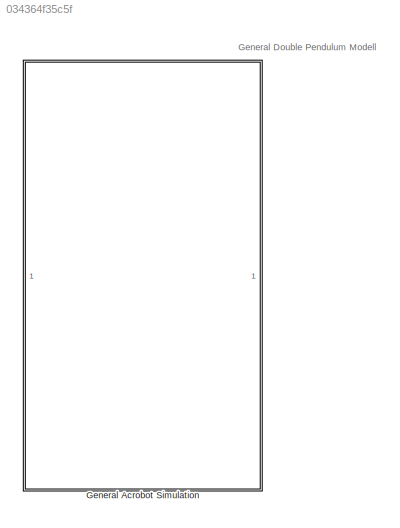
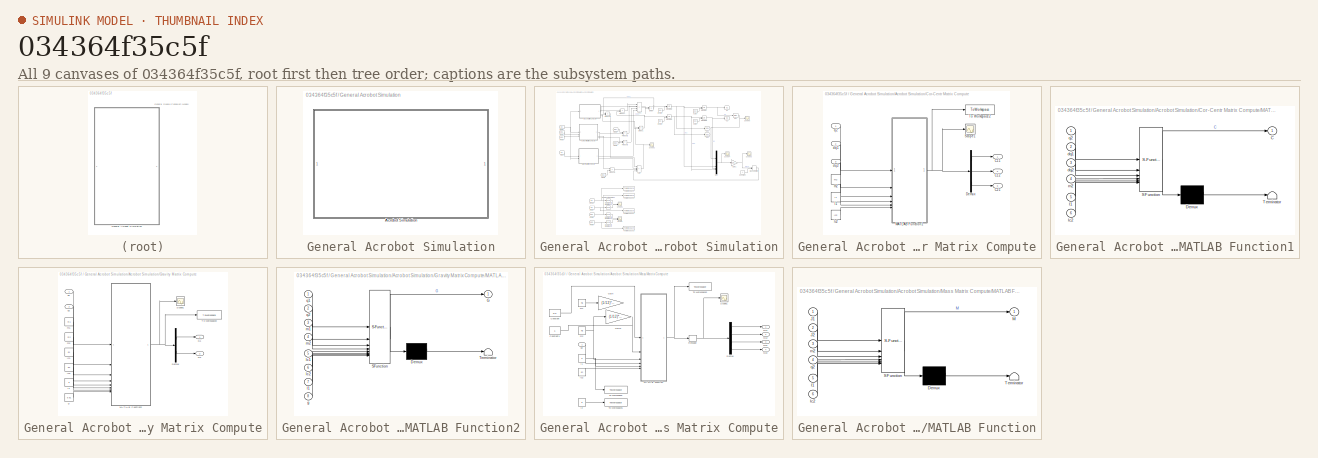
[diagram: thumbnail index - all 9 canvases of the model, root first then tree order]
MODEL slx_034364f35c5f
KIND model
CONFIG AbsTol = auto
CONFIG EnableMultiTasking = off
CONFIG FixedStep = auto
CONFIG MaxStep = 0.01*1.6
CONFIG MinStep = auto
CONFIG RelTol = 1e-3
CONFIG SampleTimeConstraint = Unconstrained
CONFIG SolverName = ode23t
CONFIG StartTime = 0.0
CONFIG StopTime = 50
BLOCK [SubSystem] General Acrobot Simulation
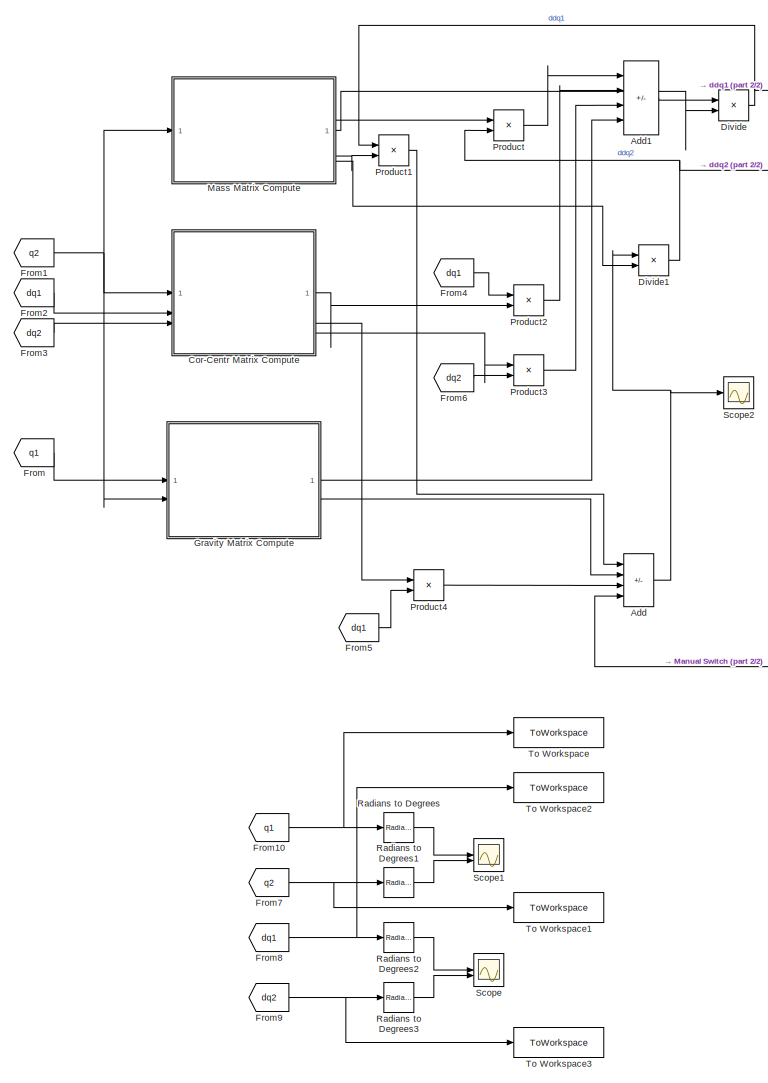
[diagram: General Acrobot Simulation/Acrobot Simulation - part 1/2, left side, full height]
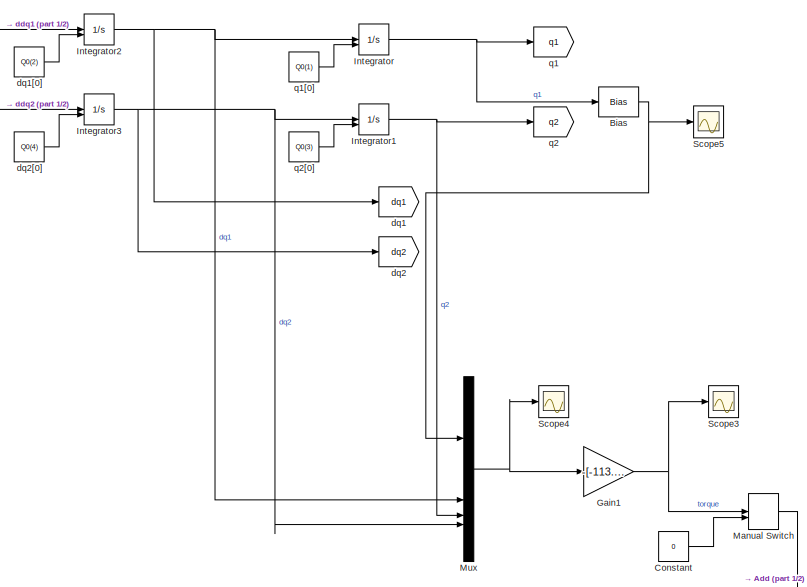
[diagram: General Acrobot Simulation/Acrobot Simulation - part 2/2, middle right region]
BLOCK [SubSystem] General Acrobot Simulation/Acrobot Simulation
BLOCK [Sum] General Acrobot Simulation/Acrobot Simulation/Add
  IconShape = rectangular
  Inputs = ---+
BLOCK [Sum] General Acrobot Simulation/Acrobot Simulation/Add1
  IconShape = rectangular
  Inputs = ----
BLOCK [Bias] General Acrobot Simulation/Acrobot Simulation/Bias
  Bias = -pi
  SaturateOnIntegerOverflow = off
BLOCK [Constant] General Acrobot Simulation/Acrobot Simulation/Constant
  Value = 0
BLOCK [SubSystem] General Acrobot Simulation/Acrobot Simulation/Cor-Centr Matrix Compute
BLOCK [Outport] General Acrobot Simulation/Acrobot Simulation/Cor-Centr Matrix Compute/C11
BLOCK [Outport] General Acrobot Simulation/Acrobot Simulation/Cor-Centr Matrix Compute/C12
  Port = 2
BLOCK [Outport] General Acrobot Simulation/Acrobot Simulation/Cor-Centr Matrix Compute/C21
  Port = 3
BLOCK [Demux] General Acrobot Simulation/Acrobot Simulation/Cor-Centr Matrix Compute/Demux
  Outputs = 3
BLOCK [SubSystem] General Acrobot Simulation/Acrobot Simulation/Cor-Centr Matrix Compute/MATLAB Function1
  ErrorFcn = Stateflow.Translate.translate
  PermitHierarchicalResolution = ExplicitOnly
  SFBlockType = MATLAB Function
  TreatAsAtomicUnit = on
BLOCK [Demux] General Acrobot Simulation/Acrobot Simulation/Cor-Centr Matrix Compute/MATLAB Function1/ Demux 
  Outputs = 1
BLOCK [S-Function] General Acrobot Simulation/Acrobot Simulation/Cor-Centr Matrix Compute/MATLAB Function1/ SFunction 
  EnableBusSupport = on
  FunctionName = sf_sfun
  PortCounts = [6 2]
  SFcnIsStateOwnerBlock = off
  SFunctionDeploymentMode = off
  Tag = Stateflow S-Function 1
BLOCK [Terminator] General Acrobot Simulation/Acrobot Simulation/Cor-Centr Matrix Compute/MATLAB Function1/ Terminator 
BLOCK [Outport] General Acrobot Simulation/Acrobot Simulation/Cor-Centr Matrix Compute/MATLAB Function1/C
BLOCK [Inport] General Acrobot Simulation/Acrobot Simulation/Cor-Centr Matrix Compute/MATLAB Function1/dq1
  Port = 2
BLOCK [Inport] General Acrobot Simulation/Acrobot Simulation/Cor-Centr Matrix Compute/MATLAB Function1/dq2
  Port = 3
BLOCK [Inport] General Acrobot Simulation/Acrobot Simulation/Cor-Centr Matrix Compute/MATLAB Function1/l1
  Port = 5
BLOCK [Inport] General Acrobot Simulation/Acrobot Simulation/Cor-Centr Matrix Compute/MATLAB Function1/lc2
  Port = 6
BLOCK [Inport] General Acrobot Simulation/Acrobot Simulation/Cor-Centr Matrix Compute/MATLAB Function1/m2
  Port = 4
BLOCK [Inport] General Acrobot Simulation/Acrobot Simulation/Cor-Centr Matrix Compute/MATLAB Function1/q2
BLOCK [Scope] General Acrobot Simulation/Acrobot Simulation/Cor-Centr Matrix Compute/Scope1
  Floating = off
  NumInputPorts = 1
  ScopeSpecificationString = Simulink.scopes.TimeScopeBlockCfg('CurrentConfiguration', extmgr.ConfigurationSet(extmgr.Configuration('Core','General UI',true),extmgr.Configuration('Core','Source UI',true),extmgr.Configuration('Sources','WiredSimulink',true,'DataLoggingVariableName','ScopeData2'),extmgr.Configuration('Visuals','Time Domain',true,'SerializedDisplays',{struct('MinYLimReal','31.7875','MaxYLimReal','43.9125','YLabe...<+1466ch>
BLOCK [ToWorkspace] General Acrobot Simulation/Acrobot Simulation/Cor-Centr Matrix Compute/To Workspace2
  FixptAsFi = on
  MaxDataPoints = inf
  SampleTime = -1
  SaveFormat = Timeseries
  VariableName = C
BLOCK [Inport] General Acrobot Simulation/Acrobot Simulation/Cor-Centr Matrix Compute/dq1
  Port = 2
BLOCK [Inport] General Acrobot Simulation/Acrobot Simulation/Cor-Centr Matrix Compute/dq2
  Port = 3
BLOCK [Constant] General Acrobot Simulation/Acrobot Simulation/Cor-Centr Matrix Compute/l1
  Value = l1
BLOCK [Constant] General Acrobot Simulation/Acrobot Simulation/Cor-Centr Matrix Compute/lc2
  Value = lc2
BLOCK [Constant] General Acrobot Simulation/Acrobot Simulation/Cor-Centr Matrix Compute/m2
  Value = m2
BLOCK [Inport] General Acrobot Simulation/Acrobot Simulation/Cor-Centr Matrix Compute/q2
BLOCK [Product] General Acrobot Simulation/Acrobot Simulation/Divide
  Inputs = */
BLOCK [Product] General Acrobot Simulation/Acrobot Simulation/Divide1
  Inputs = */
BLOCK [From] General Acrobot Simulation/Acrobot Simulation/From
  GotoTag = q1
BLOCK [From] General Acrobot Simulation/Acrobot Simulation/From1
  GotoTag = q2
BLOCK [From] General Acrobot Simulation/Acrobot Simulation/From10
  GotoTag = q1
BLOCK [From] General Acrobot Simulation/Acrobot Simulation/From2
  GotoTag = dq1
BLOCK [From] General Acrobot Simulation/Acrobot Simulation/From3
  GotoTag = dq2
BLOCK [From] General Acrobot Simulation/Acrobot Simulation/From4
  GotoTag = dq1
BLOCK [From] General Acrobot Simulation/Acrobot Simulation/From5
  GotoTag = dq1
BLOCK [From] General Acrobot Simulation/Acrobot Simulation/From6
  GotoTag = dq2
BLOCK [From] General Acrobot Simulation/Acrobot Simulation/From7
  GotoTag = q2
BLOCK [From] General Acrobot Simulation/Acrobot Simulation/From8
  GotoTag = dq1
BLOCK [From] General Acrobot Simulation/Acrobot Simulation/From9
  GotoTag = dq2
BLOCK [Gain] General Acrobot Simulation/Acrobot Simulation/Gain1
  Gain = -[-113.89 -17.3951 -9.507 -1.9405]
  Multiplication = Matrix(K*u)
BLOCK [SubSystem] General Acrobot Simulation/Acrobot Simulation/Gravity Matrix Compute
BLOCK [Demux] General Acrobot Simulation/Acrobot Simulation/Gravity Matrix Compute/Demux
  Outputs = 2
BLOCK [Outport] General Acrobot Simulation/Acrobot Simulation/Gravity Matrix Compute/G1
BLOCK [Outport] General Acrobot Simulation/Acrobot Simulation/Gravity Matrix Compute/G2
  Port = 2
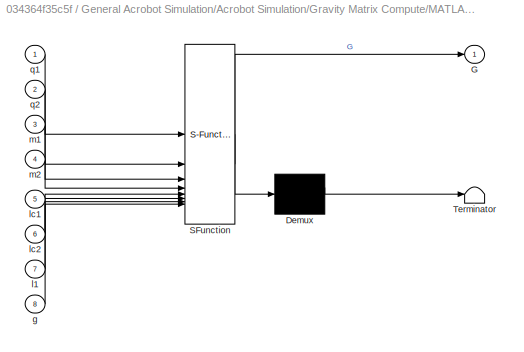
BLOCK [SubSystem] General Acrobot Simulation/Acrobot Simulation/Gravity Matrix Compute/MATLAB Function2
  ErrorFcn = Stateflow.Translate.translate
  PermitHierarchicalResolution = ExplicitOnly
  SFBlockType = MATLAB Function
  TreatAsAtomicUnit = on
BLOCK [Demux] General Acrobot Simulation/Acrobot Simulation/Gravity Matrix Compute/MATLAB Function2/ Demux 
  Outputs = 1
BLOCK [S-Function] General Acrobot Simulation/Acrobot Simulation/Gravity Matrix Compute/MATLAB Function2/ SFunction 
  EnableBusSupport = on
  FunctionName = sf_sfun
  PortCounts = [8 2]
  SFcnIsStateOwnerBlock = off
  SFunctionDeploymentMode = off
  Tag = Stateflow S-Function 3
BLOCK [Terminator] General Acrobot Simulation/Acrobot Simulation/Gravity Matrix Compute/MATLAB Function2/ Terminator 
BLOCK [Outport] General Acrobot Simulation/Acrobot Simulation/Gravity Matrix Compute/MATLAB Function2/G
BLOCK [Inport] General Acrobot Simulation/Acrobot Simulation/Gravity Matrix Compute/MATLAB Function2/g
  Port = 8
BLOCK [Inport] General Acrobot Simulation/Acrobot Simulation/Gravity Matrix Compute/MATLAB Function2/l1
  Port = 7
BLOCK [Inport] General Acrobot Simulation/Acrobot Simulation/Gravity Matrix Compute/MATLAB Function2/lc1
  Port = 5
BLOCK [Inport] General Acrobot Simulation/Acrobot Simulation/Gravity Matrix Compute/MATLAB Function2/lc2
  Port = 6
BLOCK [Inport] General Acrobot Simulation/Acrobot Simulation/Gravity Matrix Compute/MATLAB Function2/m1
  Port = 3
BLOCK [Inport] General Acrobot Simulation/Acrobot Simulation/Gravity Matrix Compute/MATLAB Function2/m2
  Port = 4
BLOCK [Inport] General Acrobot Simulation/Acrobot Simulation/Gravity Matrix Compute/MATLAB Function2/q1
BLOCK [Inport] General Acrobot Simulation/Acrobot Simulation/Gravity Matrix Compute/MATLAB Function2/q2
  Port = 2
BLOCK [Scope] General Acrobot Simulation/Acrobot Simulation/Gravity Matrix Compute/Scope1
  Floating = off
  NumInputPorts = 1
  ScopeSpecificationString = Simulink.scopes.TimeScopeBlockCfg('CurrentConfiguration', extmgr.ConfigurationSet(extmgr.Configuration('Core','General UI',true),extmgr.Configuration('Core','Source UI',true),extmgr.Configuration('Sources','WiredSimulink',true,'DataLoggingVariableName','ScopeData3'),extmgr.Configuration('Visuals','Time Domain',true,'SerializedDisplays',{struct('MinYLimReal','31.7875','MaxYLimReal','43.9125','YLabe...<+1466ch>
BLOCK [ToWorkspace] General Acrobot Simulation/Acrobot Simulation/Gravity Matrix Compute/To Workspace2
  FixptAsFi = on
  MaxDataPoints = inf
  SampleTime = -1
  SaveFormat = Timeseries
  VariableName = G
BLOCK [Constant] General Acrobot Simulation/Acrobot Simulation/Gravity Matrix Compute/g
  Value = 9.81
BLOCK [Constant] General Acrobot Simulation/Acrobot Simulation/Gravity Matrix Compute/l1
  Value = l1
BLOCK [Constant] General Acrobot Simulation/Acrobot Simulation/Gravity Matrix Compute/lc1
  Value = lc1
BLOCK [Constant] General Acrobot Simulation/Acrobot Simulation/Gravity Matrix Compute/lc2
  Value = lc2
BLOCK [Constant] General Acrobot Simulation/Acrobot Simulation/Gravity Matrix Compute/m1
  Value = m1
BLOCK [Constant] General Acrobot Simulation/Acrobot Simulation/Gravity Matrix Compute/m2
  Value = m2
BLOCK [Inport] General Acrobot Simulation/Acrobot Simulation/Gravity Matrix Compute/q1
BLOCK [Inport] General Acrobot Simulation/Acrobot Simulation/Gravity Matrix Compute/q2
  Port = 2
BLOCK [Integrator] General Acrobot Simulation/Acrobot Simulation/Integrator
  InitialConditionSource = external
BLOCK [Integrator] General Acrobot Simulation/Acrobot Simulation/Integrator1
  InitialCondition = pi/6
  InitialConditionSource = external
BLOCK [Integrator] General Acrobot Simulation/Acrobot Simulation/Integrator2
  InitialConditionSource = external
BLOCK [Integrator] General Acrobot Simulation/Acrobot Simulation/Integrator3
  InitialConditionSource = external
BLOCK [ManualSwitch] General Acrobot Simulation/Acrobot Simulation/Manual Switch
  CurrentSetting = 0
BLOCK [SubSystem] General Acrobot Simulation/Acrobot Simulation/Mass Matrix Compute
BLOCK [Constant] General Acrobot Simulation/Acrobot Simulation/Mass Matrix Compute/Constant
  Value = 0.2
BLOCK [Constant] General Acrobot Simulation/Acrobot Simulation/Mass Matrix Compute/Constant1
BLOCK [Demux] General Acrobot Simulation/Acrobot Simulation/Mass Matrix Compute/Demux
BLOCK [Gain] General Acrobot Simulation/Acrobot Simulation/Mass Matrix Compute/Gain
  Gain = (1/12)*l1^2
BLOCK [Gain] General Acrobot Simulation/Acrobot Simulation/Mass Matrix Compute/Gain1
  Gain = (1/12)*l2^2
BLOCK [Outport] General Acrobot Simulation/Acrobot Simulation/Mass Matrix Compute/M11
BLOCK [Outport] General Acrobot Simulation/Acrobot Simulation/Mass Matrix Compute/M12
  Port = 2
BLOCK [Outport] General Acrobot Simulation/Acrobot Simulation/Mass Matrix Compute/M21
  Port = 3
BLOCK [Outport] General Acrobot Simulation/Acrobot Simulation/Mass Matrix Compute/M22
  Port = 4
BLOCK [SubSystem] General Acrobot Simulation/Acrobot Simulation/Mass Matrix Compute/MATLAB Function
  ErrorFcn = Stateflow.Translate.translate
  PermitHierarchicalResolution = ExplicitOnly
  SFBlockType = MATLAB Function
  TreatAsAtomicUnit = on
BLOCK [Demux] General Acrobot Simulation/Acrobot Simulation/Mass Matrix Compute/MATLAB Function/ Demux 
  Outputs = 1
BLOCK [S-Function] General Acrobot Simulation/Acrobot Simulation/Mass Matrix Compute/MATLAB Function/ SFunction 
  EnableBusSupport = on
  FunctionName = sf_sfun
  PortCounts = [6 2]
  SFcnIsStateOwnerBlock = off
  SFunctionDeploymentMode = off
  Tag = Stateflow S-Function 2
BLOCK [Terminator] General Acrobot Simulation/Acrobot Simulation/Mass Matrix Compute/MATLAB Function/ Terminator 
BLOCK [Inport] General Acrobot Simulation/Acrobot Simulation/Mass Matrix Compute/MATLAB Function/J1
BLOCK [Inport] General Acrobot Simulation/Acrobot Simulation/Mass Matrix Compute/MATLAB Function/J2
  Port = 2
BLOCK [Outport] General Acrobot Simulation/Acrobot Simulation/Mass Matrix Compute/MATLAB Function/M
BLOCK [Inport] General Acrobot Simulation/Acrobot Simulation/Mass Matrix Compute/MATLAB Function/l1
  Port = 5
BLOCK [Inport] General Acrobot Simulation/Acrobot Simulation/Mass Matrix Compute/MATLAB Function/lc2
  Port = 6
BLOCK [Inport] General Acrobot Simulation/Acrobot Simulation/Mass Matrix Compute/MATLAB Function/m2
  Port = 3
BLOCK [Inport] General Acrobot Simulation/Acrobot Simulation/Mass Matrix Compute/MATLAB Function/q2
  Port = 4
BLOCK [Reshape] General Acrobot Simulation/Acrobot Simulation/Mass Matrix Compute/Reshape
BLOCK [Scope] General Acrobot Simulation/Acrobot Simulation/Mass Matrix Compute/Scope1
  Floating = off
  NumInputPorts = 1
  ScopeSpecificationString = Simulink.scopes.TimeScopeBlockCfg('CurrentConfiguration', extmgr.ConfigurationSet(extmgr.Configuration('Core','General UI',true),extmgr.Configuration('Core','Source UI',true),extmgr.Configuration('Sources','WiredSimulink',true,'DataLoggingVariableName','ScopeData1'),extmgr.Configuration('Visuals','Time Domain',true,'SerializedDisplays',{struct('MinYLimReal','-0.00774','MaxYLimReal','0.03971','YLab...<+1468ch>
BLOCK [ToWorkspace] General Acrobot Simulation/Acrobot Simulation/Mass Matrix Compute/To Workspace
  FixptAsFi = on
  MaxDataPoints = inf
  SampleTime = -1
  SaveFormat = Timeseries
  VariableName = l1
BLOCK [ToWorkspace] General Acrobot Simulation/Acrobot Simulation/Mass Matrix Compute/To Workspace1
  FixptAsFi = on
  MaxDataPoints = inf
  SampleTime = -1
  SaveFormat = Timeseries
  VariableName = l2
BLOCK [ToWorkspace] General Acrobot Simulation/Acrobot Simulation/Mass Matrix Compute/To Workspace2
  FixptAsFi = on
  MaxDataPoints = inf
  SampleTime = -1
  SaveFormat = Timeseries
  VariableName = M
BLOCK [Constant] General Acrobot Simulation/Acrobot Simulation/Mass Matrix Compute/l1
  Value = l1
BLOCK [Constant] General Acrobot Simulation/Acrobot Simulation/Mass Matrix Compute/l2
  Value = l2
BLOCK [Constant] General Acrobot Simulation/Acrobot Simulation/Mass Matrix Compute/lc2
  Value = lc2
BLOCK [Constant] General Acrobot Simulation/Acrobot Simulation/Mass Matrix Compute/m1
  Value = m1
BLOCK [Constant] General Acrobot Simulation/Acrobot Simulation/Mass Matrix Compute/m2
  Value = m2
BLOCK [Inport] General Acrobot Simulation/Acrobot Simulation/Mass Matrix Compute/q2
BLOCK [Mux] General Acrobot Simulation/Acrobot Simulation/Mux
  DisplayOption = bar
BLOCK [Product] General Acrobot Simulation/Acrobot Simulation/Product
BLOCK [Product] General Acrobot Simulation/Acrobot Simulation/Product1
BLOCK [Product] General Acrobot Simulation/Acrobot Simulation/Product2
BLOCK [Product] General Acrobot Simulation/Acrobot Simulation/Product3
BLOCK [Product] General Acrobot Simulation/Acrobot Simulation/Product4
BLOCK [Reference] General Acrobot Simulation/Acrobot Simulation/Radians to Degrees  REF=simulink_extras/Transformations/Radians
to Degrees
  SourceBlock = simulink_extras/Transformations/Radians\nto Degrees
  SourceType = RadiansToDegrees
BLOCK [Reference] General Acrobot Simulation/Acrobot Simulation/Radians to Degrees1  REF=simulink_extras/Transformations/Radians
to Degrees
  SourceBlock = simulink_extras/Transformations/Radians\nto Degrees
  SourceType = RadiansToDegrees
BLOCK [Reference] General Acrobot Simulation/Acrobot Simulation/Radians to Degrees2  REF=simulink_extras/Transformations/Radians
to Degrees
  SourceBlock = simulink_extras/Transformations/Radians\nto Degrees
  SourceType = RadiansToDegrees
BLOCK [Reference] General Acrobot Simulation/Acrobot Simulation/Radians to Degrees3  REF=simulink_extras/Transformations/Radians
to Degrees
  SourceBlock = simulink_extras/Transformations/Radians\nto Degrees
  SourceType = RadiansToDegrees
BLOCK [Scope] General Acrobot Simulation/Acrobot Simulation/Scope
  Floating = off
  NumInputPorts = 2
  ScopeSpecificationString = Simulink.scopes.TimeScopeBlockCfg('CurrentConfiguration', extmgr.ConfigurationSet(extmgr.Configuration('Core','General UI',true),extmgr.Configuration('Core','Source UI',true),extmgr.Configuration('Sources','WiredSimulink',true,'DataLoggingVariableName','ScopeData1'),extmgr.Configuration('Visuals','Time Domain',true,'SerializedDisplays',{struct('MinYLimReal','-21.8266','MaxYLimReal','44.50537','YLa...<+1510ch>
BLOCK [Scope] General Acrobot Simulation/Acrobot Simulation/Scope1
  Floating = off
  NumInputPorts = 2
  ScopeSpecificationString = Simulink.scopes.TimeScopeBlockCfg('CurrentConfiguration', extmgr.ConfigurationSet(extmgr.Configuration('Core','General UI',true),extmgr.Configuration('Core','Source UI',true),extmgr.Configuration('Sources','WiredSimulink',true,'DataLoggingVariableName','ScopeData2'),extmgr.Configuration('Visuals','Time Domain',true,'SerializedDisplays',{struct('MinYLimReal','-4074.37545','MaxYLimReal','6638.54089'...<+1492ch>
BLOCK [Scope] General Acrobot Simulation/Acrobot Simulation/Scope2
  Floating = off
  NumInputPorts = 1
  ScopeSpecificationString = Simulink.scopes.TimeScopeBlockCfg('CurrentConfiguration', extmgr.ConfigurationSet(extmgr.Configuration('Core','General UI',true),extmgr.Configuration('Core','Source UI',true),extmgr.Configuration('Sources','WiredSimulink',true,'DataLoggingVariableName','ScopeData3'),extmgr.Configuration('Visuals','Time Domain',true,'SerializedDisplays',{struct('MinYLimReal','-59.26557','MaxYLimReal','59.16227','YL...<+1439ch>
BLOCK [Scope] General Acrobot Simulation/Acrobot Simulation/Scope3
  Floating = off
  NumInputPorts = 1
  ScopeSpecificationString = Simulink.scopes.TimeScopeBlockCfg('CurrentConfiguration', extmgr.ConfigurationSet(extmgr.Configuration('Core','General UI',true),extmgr.Configuration('Core','Source UI',true),extmgr.Configuration('Sources','WiredSimulink',true,'DataLoggingVariableName','ScopeData1'),extmgr.Configuration('Visuals','Time Domain',true,'SerializedDisplays',{struct('MinYLimReal','-1258.32156','MaxYLimReal','11518.50707...<+1499ch>
BLOCK [Scope] General Acrobot Simulation/Acrobot Simulation/Scope4
  Floating = off
  NumInputPorts = 1
  ScopeSpecificationString = Simulink.scopes.TimeScopeBlockCfg('CurrentConfiguration', extmgr.ConfigurationSet(extmgr.Configuration('Core','General UI',true),extmgr.Configuration('Core','Source UI',true),extmgr.Configuration('Sources','WiredSimulink',true,'DataLoggingVariableName','ScopeData1'),extmgr.Configuration('Visuals','Time Domain',true,'SerializedDisplays',{struct('MinYLimReal','-0.22253','MaxYLimReal','0.12911','YLab...<+1486ch>
BLOCK [Scope] General Acrobot Simulation/Acrobot Simulation/Scope5
  Floating = off
  NumInputPorts = 1
  ScopeSpecificationString = Simulink.scopes.TimeScopeBlockCfg('CurrentConfiguration', extmgr.ConfigurationSet(extmgr.Configuration('Core','General UI',true),extmgr.Configuration('Core','Source UI',true),extmgr.Configuration('Sources','WiredSimulink',true,'DataLoggingVariableName','ScopeData2'),extmgr.Configuration('Visuals','Time Domain',true,'SerializedDisplays',{struct('MinYLimReal','-145.24429','MaxYLimReal','16.12714','Y...<+1483ch>
BLOCK [ToWorkspace] General Acrobot Simulation/Acrobot Simulation/To Workspace
  FixptAsFi = on
  MaxDataPoints = inf
  SampleTime = -1
  SaveFormat = Timeseries
  VariableName = q1
BLOCK [ToWorkspace] General Acrobot Simulation/Acrobot Simulation/To Workspace1
  FixptAsFi = on
  MaxDataPoints = inf
  SampleTime = -1
  SaveFormat = Timeseries
  VariableName = q2
BLOCK [ToWorkspace] General Acrobot Simulation/Acrobot Simulation/To Workspace2
  FixptAsFi = on
  MaxDataPoints = inf
  SampleTime = -1
  SaveFormat = Timeseries
  VariableName = dq1
BLOCK [ToWorkspace] General Acrobot Simulation/Acrobot Simulation/To Workspace3
  FixptAsFi = on
  MaxDataPoints = inf
  SampleTime = -1
  SaveFormat = Timeseries
  VariableName = dq2
BLOCK [Goto] General Acrobot Simulation/Acrobot Simulation/dq1
  GotoTag = dq1
BLOCK [Constant] General Acrobot Simulation/Acrobot Simulation/dq1[0]
  Value = Q0(2)
BLOCK [Goto] General Acrobot Simulation/Acrobot Simulation/dq2
  GotoTag = dq2
BLOCK [Constant] General Acrobot Simulation/Acrobot Simulation/dq2[0]
  Value = Q0(4)
BLOCK [Goto] General Acrobot Simulation/Acrobot Simulation/q1
  GotoTag = q1
BLOCK [Constant] General Acrobot Simulation/Acrobot Simulation/q1[0]
  Value = Q0(1)
  VectorParams1D = off
BLOCK [Goto] General Acrobot Simulation/Acrobot Simulation/q2
  GotoTag = q2
BLOCK [Constant] General Acrobot Simulation/Acrobot Simulation/q2[0]
  Value = Q0(3)
ANNOTATION (root): General Double Pendulum Modell
LINE General Acrobot Simulation/Acrobot Simulation/Add1:1 -> General Acrobot Simulation/Acrobot Simulation/Divide:1
NET General Acrobot Simulation/Acrobot Simulation/Add:1 -> General Acrobot Simulation/Acrobot Simulation/Divide1:1, General Acrobot Simulation/Acrobot Simulation/Scope2:1
NET General Acrobot Simulation/Acrobot Simulation/Bias:1 -> General Acrobot Simulation/Acrobot Simulation/Mux:1, General Acrobot Simulation/Acrobot Simulation/Scope5:1
LINE General Acrobot Simulation/Acrobot Simulation/Constant:1 -> General Acrobot Simulation/Acrobot Simulation/Manual Switch:2
LINE General Acrobot Simulation/Acrobot Simulation/Cor-Centr Matrix Compute/Demux:1 -> General Acrobot Simulation/Acrobot Simulation/Cor-Centr Matrix Compute/C11:1
LINE General Acrobot Simulation/Acrobot Simulation/Cor-Centr Matrix Compute/Demux:2 -> General Acrobot Simulation/Acrobot Simulation/Cor-Centr Matrix Compute/C12:1
LINE General Acrobot Simulation/Acrobot Simulation/Cor-Centr Matrix Compute/Demux:3 -> General Acrobot Simulation/Acrobot Simulation/Cor-Centr Matrix Compute/C21:1
NET General Acrobot Simulation/Acrobot Simulation/Cor-Centr Matrix Compute/MATLAB Function1:1 -> General Acrobot Simulation/Acrobot Simulation/Cor-Centr Matrix Compute/Demux:1, General Acrobot Simulation/Acrobot Simulation/Cor-Centr Matrix Compute/Scope1:1, General Acrobot Simulation/Acrobot Simulation/Cor-Centr Matrix Compute/To Workspace2:1
LINE General Acrobot Simulation/Acrobot Simulation/Cor-Centr Matrix Compute/dq1:1 -> General Acrobot Simulation/Acrobot Simulation/Cor-Centr Matrix Compute/MATLAB Function1:2
LINE General Acrobot Simulation/Acrobot Simulation/Cor-Centr Matrix Compute/dq2:1 -> General Acrobot Simulation/Acrobot Simulation/Cor-Centr Matrix Compute/MATLAB Function1:3
LINE General Acrobot Simulation/Acrobot Simulation/Cor-Centr Matrix Compute/l1:1 -> General Acrobot Simulation/Acrobot Simulation/Cor-Centr Matrix Compute/MATLAB Function1:5
LINE General Acrobot Simulation/Acrobot Simulation/Cor-Centr Matrix Compute/lc2:1 -> General Acrobot Simulation/Acrobot Simulation/Cor-Centr Matrix Compute/MATLAB Function1:6
LINE General Acrobot Simulation/Acrobot Simulation/Cor-Centr Matrix Compute/m2:1 -> General Acrobot Simulation/Acrobot Simulation/Cor-Centr Matrix Compute/MATLAB Function1:4
LINE General Acrobot Simulation/Acrobot Simulation/Cor-Centr Matrix Compute/q2:1 -> General Acrobot Simulation/Acrobot Simulation/Cor-Centr Matrix Compute/MATLAB Function1:1
LINE General Acrobot Simulation/Acrobot Simulation/Cor-Centr Matrix Compute:1 -> General Acrobot Simulation/Acrobot Simulation/Product2:2
LINE General Acrobot Simulation/Acrobot Simulation/Cor-Centr Matrix Compute:2 -> General Acrobot Simulation/Acrobot Simulation/Product3:1
LINE General Acrobot Simulation/Acrobot Simulation/Cor-Centr Matrix Compute:3 -> General Acrobot Simulation/Acrobot Simulation/Product4:1
NET General Acrobot Simulation/Acrobot Simulation/Divide1:1 -> General Acrobot Simulation/Acrobot Simulation/Integrator3:1, General Acrobot Simulation/Acrobot Simulation/Product:2
NET General Acrobot Simulation/Acrobot Simulation/Divide:1 -> General Acrobot Simulation/Acrobot Simulation/Integrator2:1, General Acrobot Simulation/Acrobot Simulation/Product1:1
NET General Acrobot Simulation/Acrobot Simulation/From10:1 -> General Acrobot Simulation/Acrobot Simulation/Radians to Degrees:1, General Acrobot Simulation/Acrobot Simulation/To Workspace:1
NET General Acrobot Simulation/Acrobot Simulation/From1:1 -> General Acrobot Simulation/Acrobot Simulation/Cor-Centr Matrix Compute:1, General Acrobot Simulation/Acrobot Simulation/Gravity Matrix Compute:2, General Acrobot Simulation/Acrobot Simulation/Mass Matrix Compute:1
LINE General Acrobot Simulation/Acrobot Simulation/From2:1 -> General Acrobot Simulation/Acrobot Simulation/Cor-Centr Matrix Compute:2
LINE General Acrobot Simulation/Acrobot Simulation/From3:1 -> General Acrobot Simulation/Acrobot Simulation/Cor-Centr Matrix Compute:3
LINE General Acrobot Simulation/Acrobot Simulation/From4:1 -> General Acrobot Simulation/Acrobot Simulation/Product2:1
LINE General Acrobot Simulation/Acrobot Simulation/From5:1 -> General Acrobot Simulation/Acrobot Simulation/Product4:2
LINE General Acrobot Simulation/Acrobot Simulation/From6:1 -> General Acrobot Simulation/Acrobot Simulation/Product3:2
NET General Acrobot Simulation/Acrobot Simulation/From7:1 -> General Acrobot Simulation/Acrobot Simulation/Radians to Degrees1:1, General Acrobot Simulation/Acrobot Simulation/To Workspace1:1
NET General Acrobot Simulation/Acrobot Simulation/From8:1 -> General Acrobot Simulation/Acrobot Simulation/Radians to Degrees2:1, General Acrobot Simulation/Acrobot Simulation/To Workspace2:1
NET General Acrobot Simulation/Acrobot Simulation/From9:1 -> General Acrobot Simulation/Acrobot Simulation/Radians to Degrees3:1, General Acrobot Simulation/Acrobot Simulation/To Workspace3:1
LINE General Acrobot Simulation/Acrobot Simulation/From:1 -> General Acrobot Simulation/Acrobot Simulation/Gravity Matrix Compute:1
NET General Acrobot Simulation/Acrobot Simulation/Gain1:1 -> General Acrobot Simulation/Acrobot Simulation/Manual Switch:1, General Acrobot Simulation/Acrobot Simulation/Scope3:1
LINE General Acrobot Simulation/Acrobot Simulation/Gravity Matrix Compute/Demux:1 -> General Acrobot Simulation/Acrobot Simulation/Gravity Matrix Compute/G1:1
LINE General Acrobot Simulation/Acrobot Simulation/Gravity Matrix Compute/Demux:2 -> General Acrobot Simulation/Acrobot Simulation/Gravity Matrix Compute/G2:1
NET General Acrobot Simulation/Acrobot Simulation/Gravity Matrix Compute/MATLAB Function2:1 -> General Acrobot Simulation/Acrobot Simulation/Gravity Matrix Compute/Demux:1, General Acrobot Simulation/Acrobot Simulation/Gravity Matrix Compute/Scope1:1, General Acrobot Simulation/Acrobot Simulation/Gravity Matrix Compute/To Workspace2:1
LINE General Acrobot Simulation/Acrobot Simulation/Gravity Matrix Compute/g:1 -> General Acrobot Simulation/Acrobot Simulation/Gravity Matrix Compute/MATLAB Function2:8
LINE General Acrobot Simulation/Acrobot Simulation/Gravity Matrix Compute/l1:1 -> General Acrobot Simulation/Acrobot Simulation/Gravity Matrix Compute/MATLAB Function2:7
LINE General Acrobot Simulation/Acrobot Simulation/Gravity Matrix Compute/lc1:1 -> General Acrobot Simulation/Acrobot Simulation/Gravity Matrix Compute/MATLAB Function2:5
LINE General Acrobot Simulation/Acrobot Simulation/Gravity Matrix Compute/lc2:1 -> General Acrobot Simulation/Acrobot Simulation/Gravity Matrix Compute/MATLAB Function2:6
LINE General Acrobot Simulation/Acrobot Simulation/Gravity Matrix Compute/m1:1 -> General Acrobot Simulation/Acrobot Simulation/Gravity Matrix Compute/MATLAB Function2:3
LINE General Acrobot Simulation/Acrobot Simulation/Gravity Matrix Compute/m2:1 -> General Acrobot Simulation/Acrobot Simulation/Gravity Matrix Compute/MATLAB Function2:4
LINE General Acrobot Simulation/Acrobot Simulation/Gravity Matrix Compute/q1:1 -> General Acrobot Simulation/Acrobot Simulation/Gravity Matrix Compute/MATLAB Function2:1
LINE General Acrobot Simulation/Acrobot Simulation/Gravity Matrix Compute/q2:1 -> General Acrobot Simulation/Acrobot Simulation/Gravity Matrix Compute/MATLAB Function2:2
LINE General Acrobot Simulation/Acrobot Simulation/Gravity Matrix Compute:1 -> General Acrobot Simulation/Acrobot Simulation/Add1:4
LINE General Acrobot Simulation/Acrobot Simulation/Gravity Matrix Compute:2 -> General Acrobot Simulation/Acrobot Simulation/Add:2
NET General Acrobot Simulation/Acrobot Simulation/Integrator1:1 -> General Acrobot Simulation/Acrobot Simulation/Mux:3, General Acrobot Simulation/Acrobot Simulation/q2:1
NET General Acrobot Simulation/Acrobot Simulation/Integrator2:1 -> General Acrobot Simulation/Acrobot Simulation/Integrator:1, General Acrobot Simulation/Acrobot Simulation/Mux:2, General Acrobot Simulation/Acrobot Simulation/dq1:1
NET General Acrobot Simulation/Acrobot Simulation/Integrator3:1 -> General Acrobot Simulation/Acrobot Simulation/Integrator1:1, General Acrobot Simulation/Acrobot Simulation/Mux:4, General Acrobot Simulation/Acrobot Simulation/dq2:1
NET General Acrobot Simulation/Acrobot Simulation/Integrator:1 -> General Acrobot Simulation/Acrobot Simulation/Bias:1, General Acrobot Simulation/Acrobot Simulation/q1:1
LINE General Acrobot Simulation/Acrobot Simulation/Manual Switch:1 -> General Acrobot Simulation/Acrobot Simulation/Add:4
LINE General Acrobot Simulation/Acrobot Simulation/Mass Matrix Compute/Constant1:1 -> General Acrobot Simulation/Acrobot Simulation/Mass Matrix Compute/MATLAB Function:2
LINE General Acrobot Simulation/Acrobot Simulation/Mass Matrix Compute/Constant:1 -> General Acrobot Simulation/Acrobot Simulation/Mass Matrix Compute/MATLAB Function:1
LINE General Acrobot Simulation/Acrobot Simulation/Mass Matrix Compute/Demux:1 -> General Acrobot Simulation/Acrobot Simulation/Mass Matrix Compute/M11:1
LINE General Acrobot Simulation/Acrobot Simulation/Mass Matrix Compute/Demux:2 -> General Acrobot Simulation/Acrobot Simulation/Mass Matrix Compute/M12:1
LINE General Acrobot Simulation/Acrobot Simulation/Mass Matrix Compute/Demux:3 -> General Acrobot Simulation/Acrobot Simulation/Mass Matrix Compute/M21:1
LINE General Acrobot Simulation/Acrobot Simulation/Mass Matrix Compute/Demux:4 -> General Acrobot Simulation/Acrobot Simulation/Mass Matrix Compute/M22:1
NET General Acrobot Simulation/Acrobot Simulation/Mass Matrix Compute/MATLAB Function:1 -> General Acrobot Simulation/Acrobot Simulation/Mass Matrix Compute/Reshape:1, General Acrobot Simulation/Acrobot Simulation/Mass Matrix Compute/To Workspace2:1
NET General Acrobot Simulation/Acrobot Simulation/Mass Matrix Compute/Reshape:1 -> General Acrobot Simulation/Acrobot Simulation/Mass Matrix Compute/Demux:1, General Acrobot Simulation/Acrobot Simulation/Mass Matrix Compute/Scope1:1
NET General Acrobot Simulation/Acrobot Simulation/Mass Matrix Compute/l1:1 -> General Acrobot Simulation/Acrobot Simulation/Mass Matrix Compute/MATLAB Function:5, General Acrobot Simulation/Acrobot Simulation/Mass Matrix Compute/To Workspace:1
LINE General Acrobot Simulation/Acrobot Simulation/Mass Matrix Compute/l2:1 -> General Acrobot Simulation/Acrobot Simulation/Mass Matrix Compute/To Workspace1:1
LINE General Acrobot Simulation/Acrobot Simulation/Mass Matrix Compute/lc2:1 -> General Acrobot Simulation/Acrobot Simulation/Mass Matrix Compute/MATLAB Function:6
LINE General Acrobot Simulation/Acrobot Simulation/Mass Matrix Compute/m1:1 -> General Acrobot Simulation/Acrobot Simulation/Mass Matrix Compute/Gain:1
NET General Acrobot Simulation/Acrobot Simulation/Mass Matrix Compute/m2:1 -> General Acrobot Simulation/Acrobot Simulation/Mass Matrix Compute/Gain1:1, General Acrobot Simulation/Acrobot Simulation/Mass Matrix Compute/MATLAB Function:3
LINE General Acrobot Simulation/Acrobot Simulation/Mass Matrix Compute/q2:1 -> General Acrobot Simulation/Acrobot Simulation/Mass Matrix Compute/MATLAB Function:4
LINE General Acrobot Simulation/Acrobot Simulation/Mass Matrix Compute:1 -> General Acrobot Simulation/Acrobot Simulation/Divide:2
LINE General Acrobot Simulation/Acrobot Simulation/Mass Matrix Compute:2 -> General Acrobot Simulation/Acrobot Simulation/Product:1
LINE General Acrobot Simulation/Acrobot Simulation/Mass Matrix Compute:3 -> General Acrobot Simulation/Acrobot Simulation/Product1:2
LINE General Acrobot Simulation/Acrobot Simulation/Mass Matrix Compute:4 -> General Acrobot Simulation/Acrobot Simulation/Divide1:2
NET General Acrobot Simulation/Acrobot Simulation/Mux:1 -> General Acrobot Simulation/Acrobot Simulation/Gain1:1, General Acrobot Simulation/Acrobot Simulation/Scope4:1
LINE General Acrobot Simulation/Acrobot Simulation/Product1:1 -> General Acrobot Simulation/Acrobot Simulation/Add:1
LINE General Acrobot Simulation/Acrobot Simulation/Product2:1 -> General Acrobot Simulation/Acrobot Simulation/Add1:2
LINE General Acrobot Simulation/Acrobot Simulation/Product3:1 -> General Acrobot Simulation/Acrobot Simulation/Add1:3
LINE General Acrobot Simulation/Acrobot Simulation/Product4:1 -> General Acrobot Simulation/Acrobot Simulation/Add:3
LINE General Acrobot Simulation/Acrobot Simulation/Product:1 -> General Acrobot Simulation/Acrobot Simulation/Add1:1
LINE General Acrobot Simulation/Acrobot Simulation/Radians to Degrees1:1 -> General Acrobot Simulation/Acrobot Simulation/Scope1:2
LINE General Acrobot Simulation/Acrobot Simulation/Radians to Degrees2:1 -> General Acrobot Simulation/Acrobot Simulation/Scope:1
LINE General Acrobot Simulation/Acrobot Simulation/Radians to Degrees3:1 -> General Acrobot Simulation/Acrobot Simulation/Scope:2
LINE General Acrobot Simulation/Acrobot Simulation/Radians to Degrees:1 -> General Acrobot Simulation/Acrobot Simulation/Scope1:1
LINE General Acrobot Simulation/Acrobot Simulation/dq1[0]:1 -> General Acrobot Simulation/Acrobot Simulation/Integrator2:2
LINE General Acrobot Simulation/Acrobot Simulation/dq2[0]:1 -> General Acrobot Simulation/Acrobot Simulation/Integrator3:2
LINE General Acrobot Simulation/Acrobot Simulation/q1[0]:1 -> General Acrobot Simulation/Acrobot Simulation/Integrator:2
LINE General Acrobot Simulation/Acrobot Simulation/q2[0]:1 -> General Acrobot Simulation/Acrobot Simulation/Integrator1:2
note: NET lines group one-source signal fan-out (src -> all destinations, sorted); 1:1 wires keep LINE
CHART General Acrobot Simulation/Acrobot Simulation/Cor-Centr Matrix Compute/MATLAB Function1 states=1 transitions=1
  STATE_LABEL 'eML_blk_kernel()'
  STATE_LABEL 'SCRIPT:\nfunction C = C_matrix(q2,dq1,dq2,m2,l1,lc2)\n\nC1 = -2*m2*l1*lc2*sin(q2)*dq2;\nC2 = -m2*l1*lc2*sin(q2)*dq2;\nC3 = m2*l1*lc2*sin(q2)*dq1;\n%C4 = 0;\n\nC = [C1;C2;C3];\n\nend'
CHART General Acrobot Simulation/Acrobot Simulation/Mass Matrix Compute/MATLAB Function states=1 transitions=1
  STATE_LABEL 'eML_blk_kernel()'
  STATE_LABEL 'SCRIPT:\nfunction M = Mass_matrix(J1,J2,m2,q2,l1,lc2)\n\n%M11 = alfa1 + alfa2 + 2*alfa3*cos(q2);\n%M12 = alfa2 + alfa3*cos(q2);\n%M21 = M12;\n%M22 = alfa2;\n\nM11 = J1+J2+m2*l1^2+2*m2*l1*lc2*cos(q2);\nM12 = J2 + m2*l1*lc2*cos(q2);\nM21 = M12;\nM22 = J2;\n\nM = [M11 M12; M21 M22];\n\nend'
CHART General Acrobot Simulation/Acrobot Simulation/Gravity Matrix Compute/MATLAB Function2 states=1 transitions=1
  STATE_LABEL 'eML_blk_kernel()'
  STATE_LABEL 'SCRIPT:\nfunction G = Gravity_matrix(q1,q2,m1,m2,lc1,lc2,l1,g)\n\nG1 = m1*g*lc1*sin(q1) + m2*g*(l1*sin(q1)+lc2*sin(q1+q2));\nG2 = m2*g*lc2*sin(q1+q2);\n\nG = [G1;G2];\n\nend'
CHART  states=0 transitions=0
CHART  states=0 transitions=0
CHART  states=0 transitions=0
